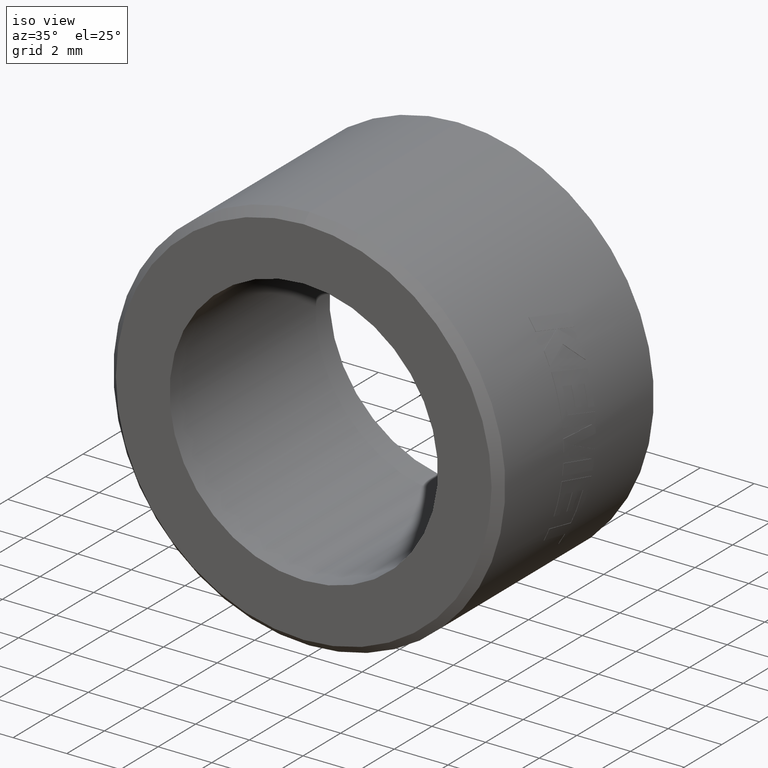
[diagram: clean part render]
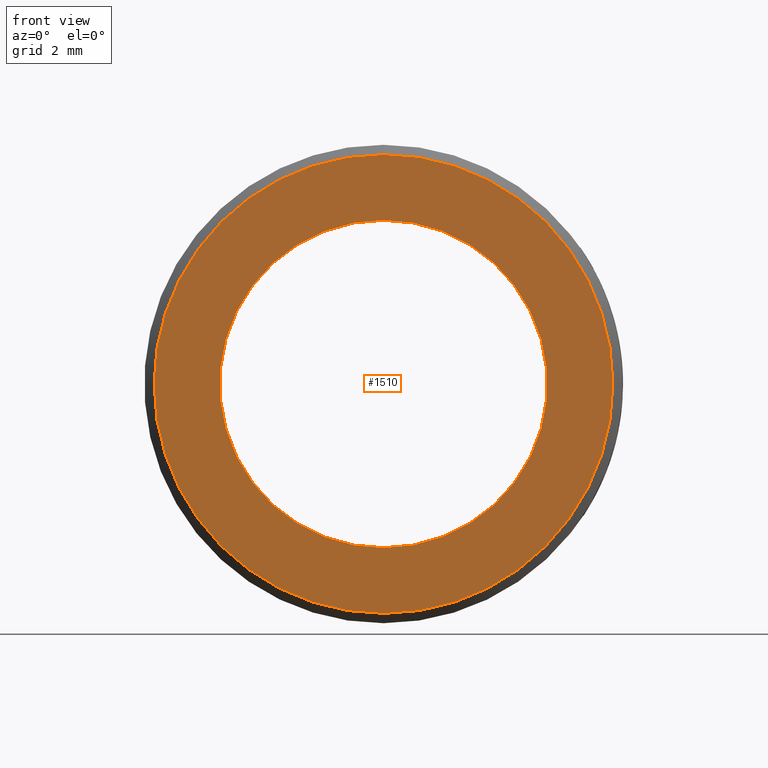
[diagram: tour spotlight — one face highlighted and labeled with its STEP entity id]
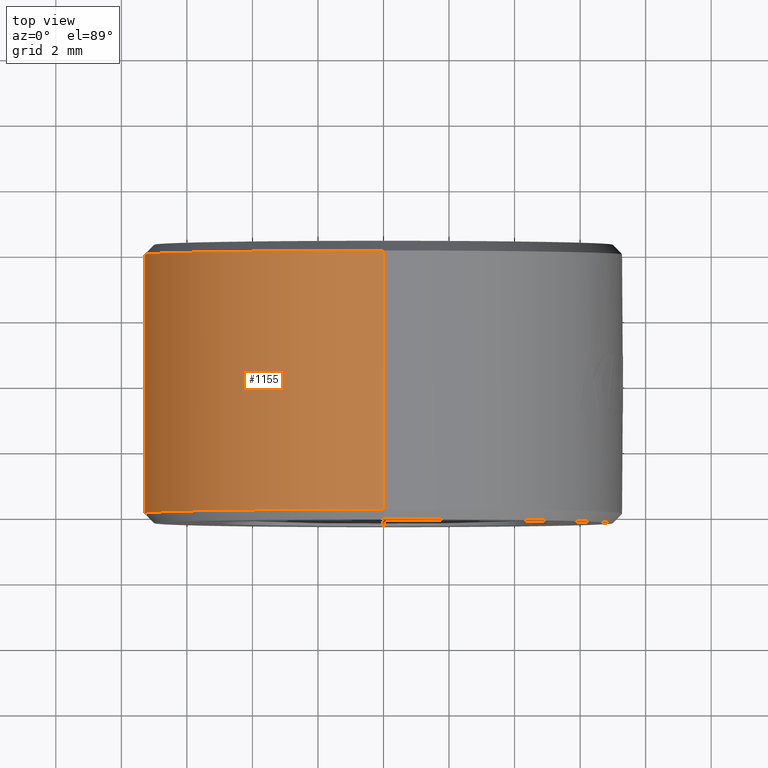
[diagram: tour spotlight — one face highlighted and labeled with its STEP entity id]
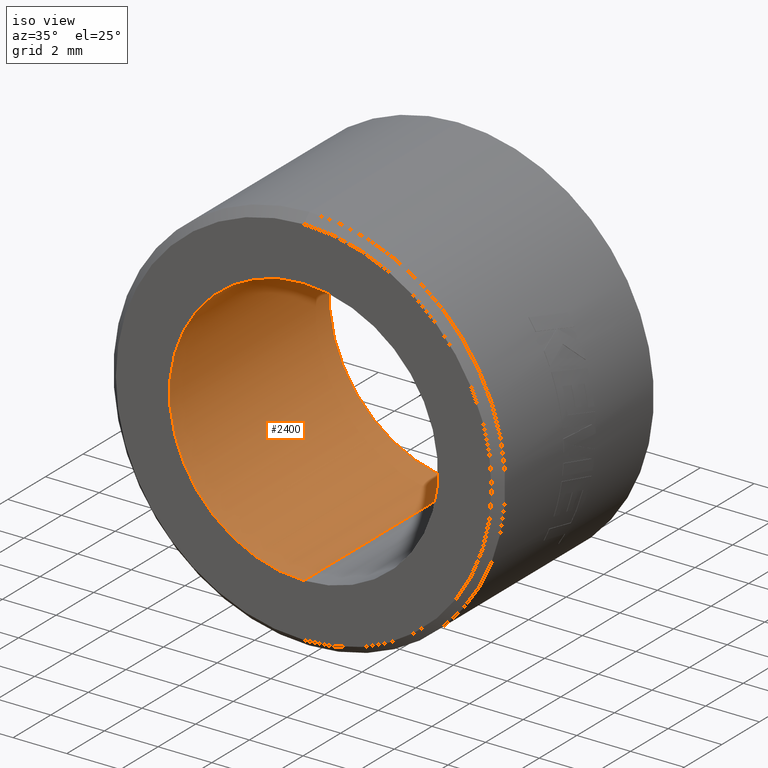
[diagram: tour spotlight — one face highlighted and labeled with its STEP entity id]
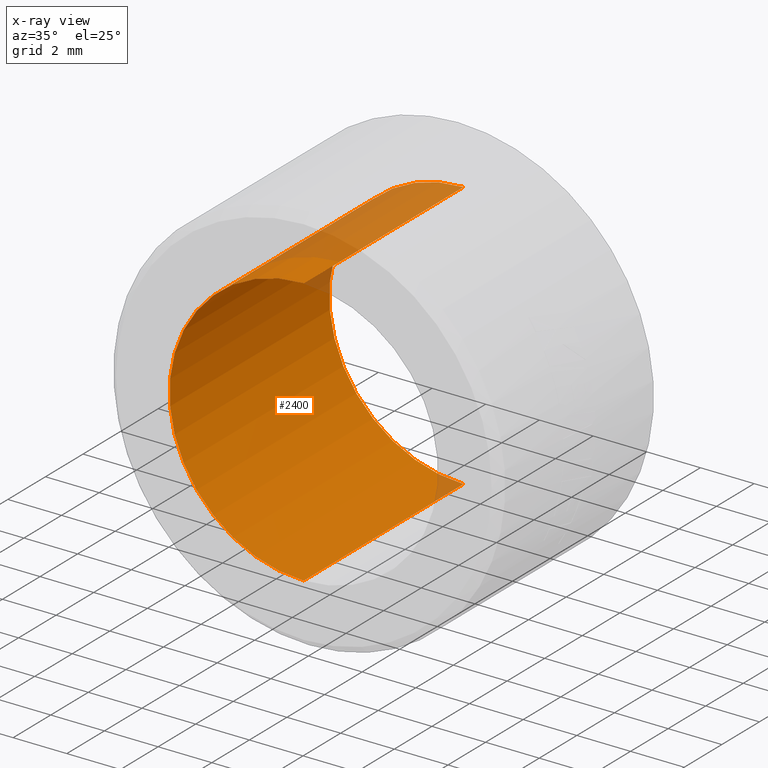
[diagram: x-ray of the same camera — body ghosted, this tour face saturated]
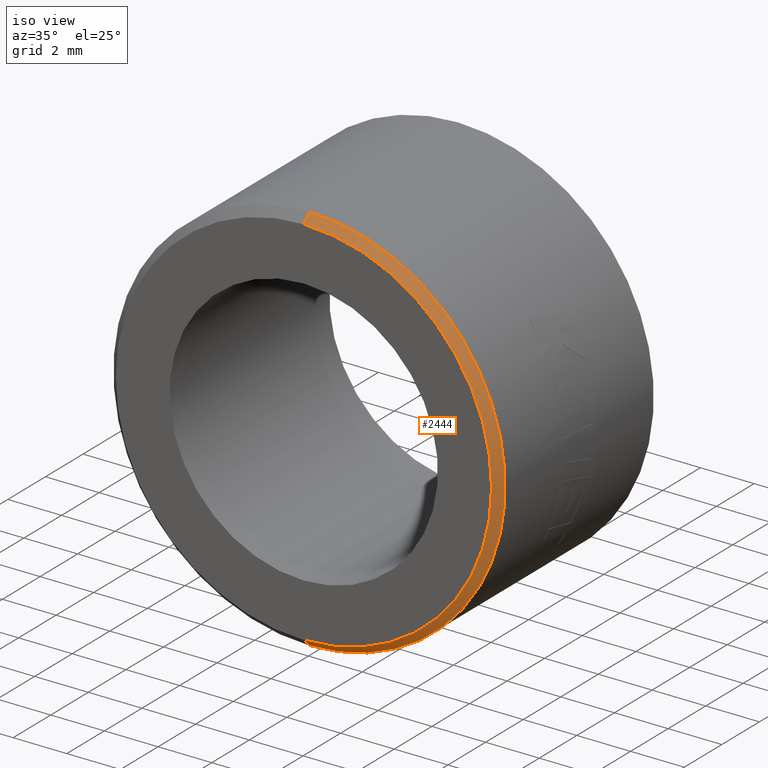
[diagram: tour spotlight — one face highlighted and labeled with its STEP entity id]
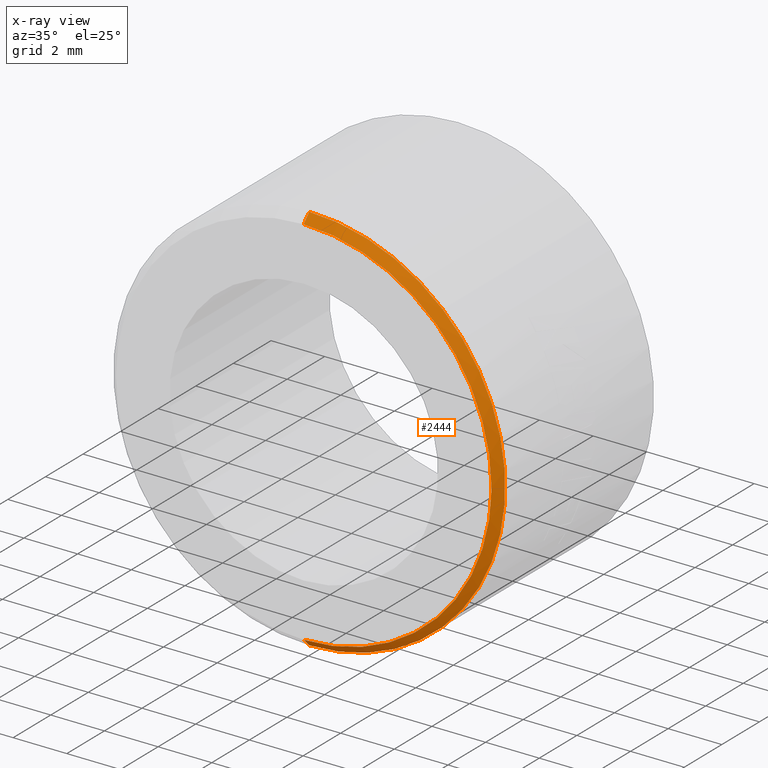
[diagram: x-ray of the same camera — body ghosted, this tour face saturated]
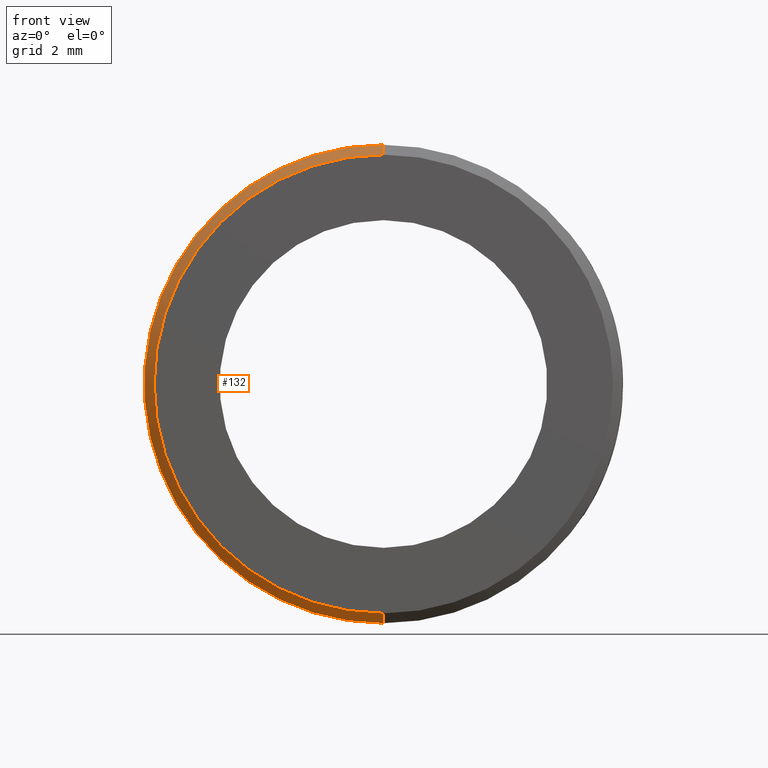
[diagram: tour spotlight — one face highlighted and labeled with its STEP entity id]
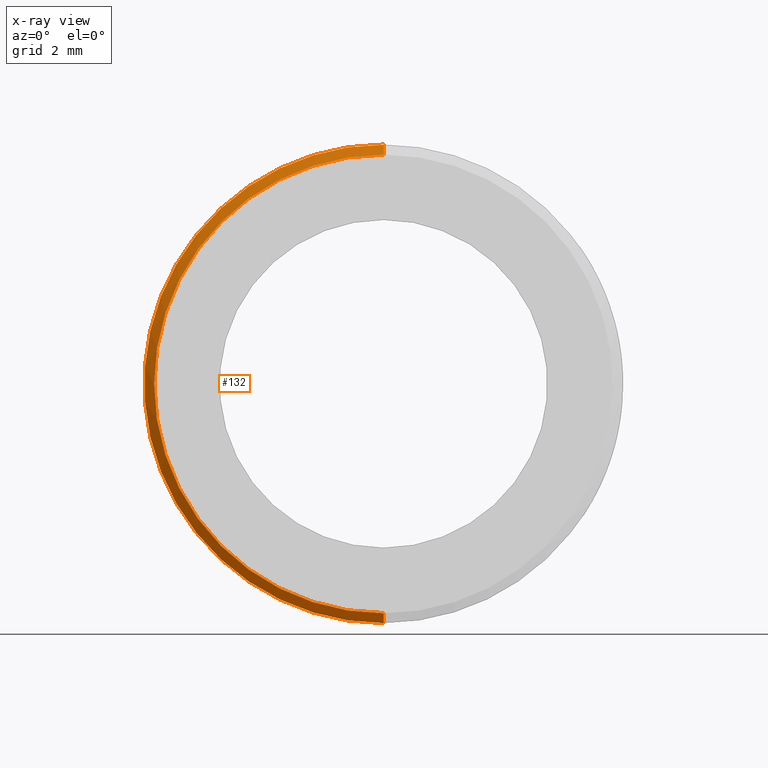
[diagram: x-ray of the same camera — body ghosted, this tour face saturated]
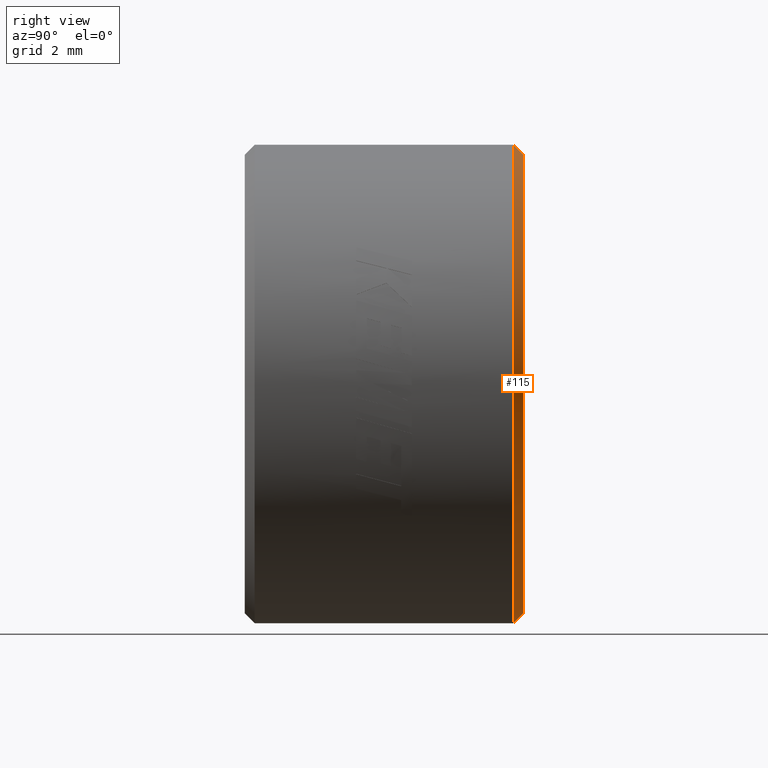
[diagram: tour spotlight — one face highlighted and labeled with its STEP entity id]
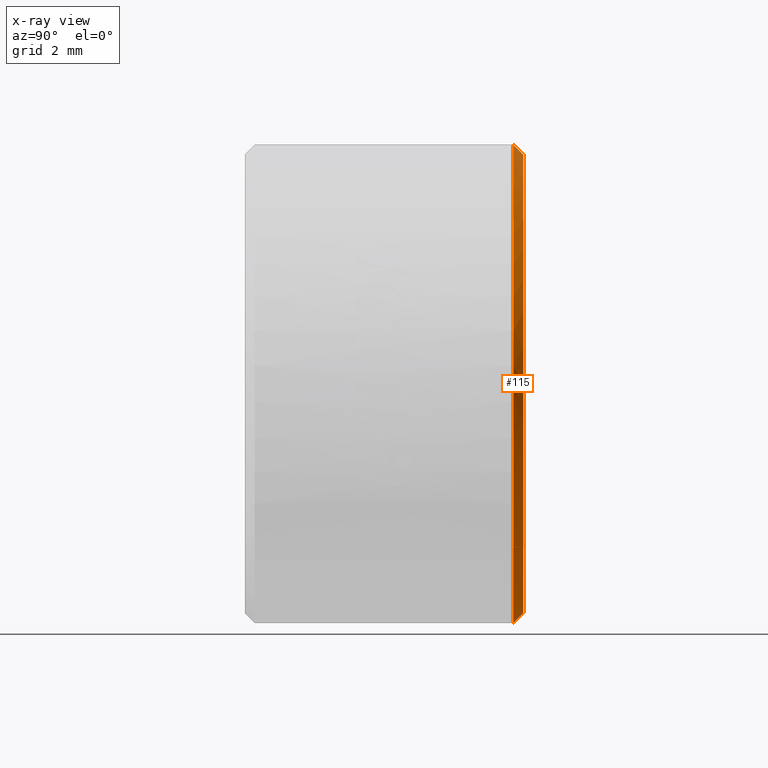
[diagram: x-ray of the same camera — body ghosted, this tour face saturated]
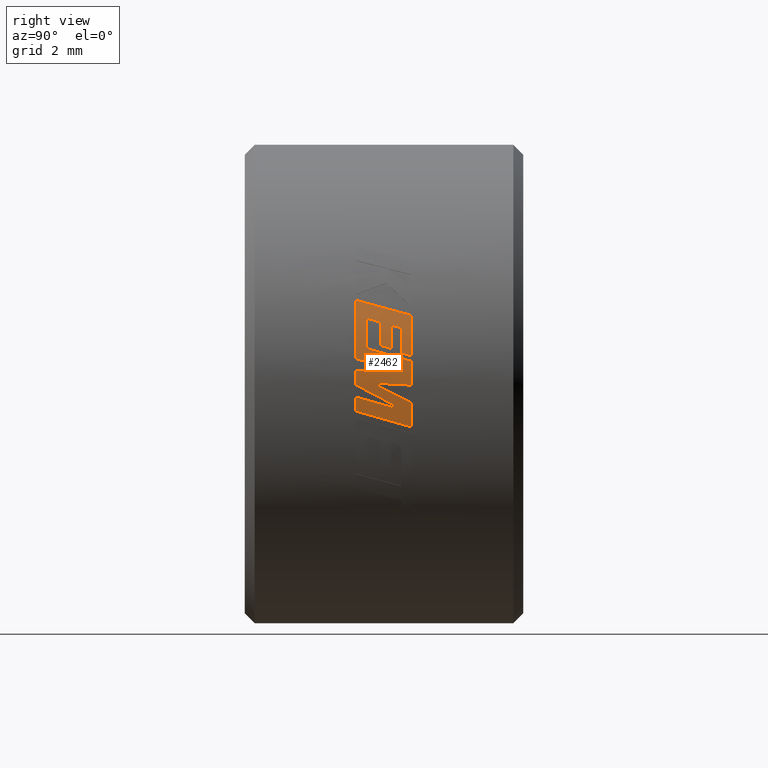
[diagram: tour spotlight — one face highlighted and labeled with its STEP entity id]
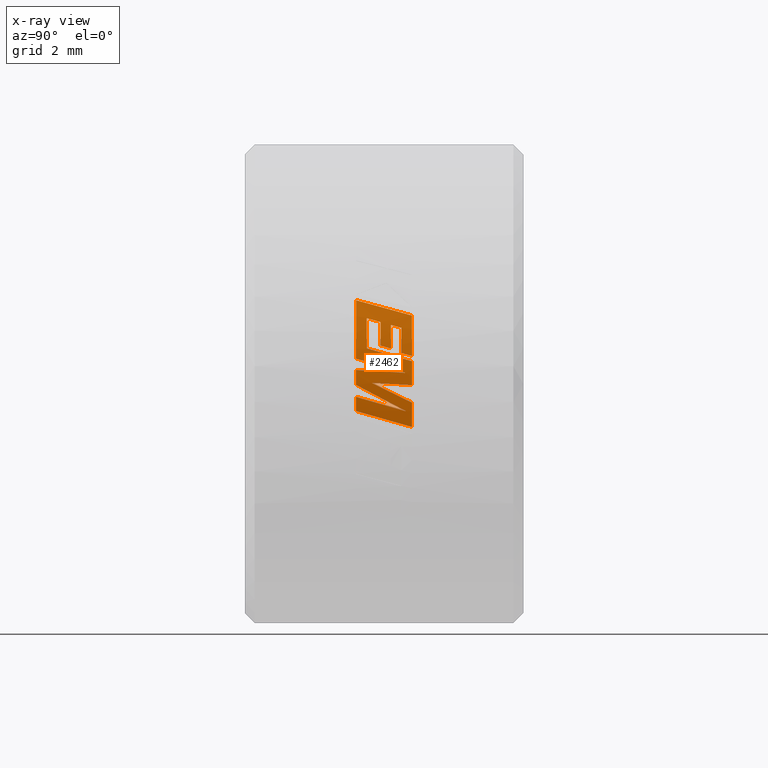
[diagram: x-ray of the same camera — body ghosted, this tour face saturated]
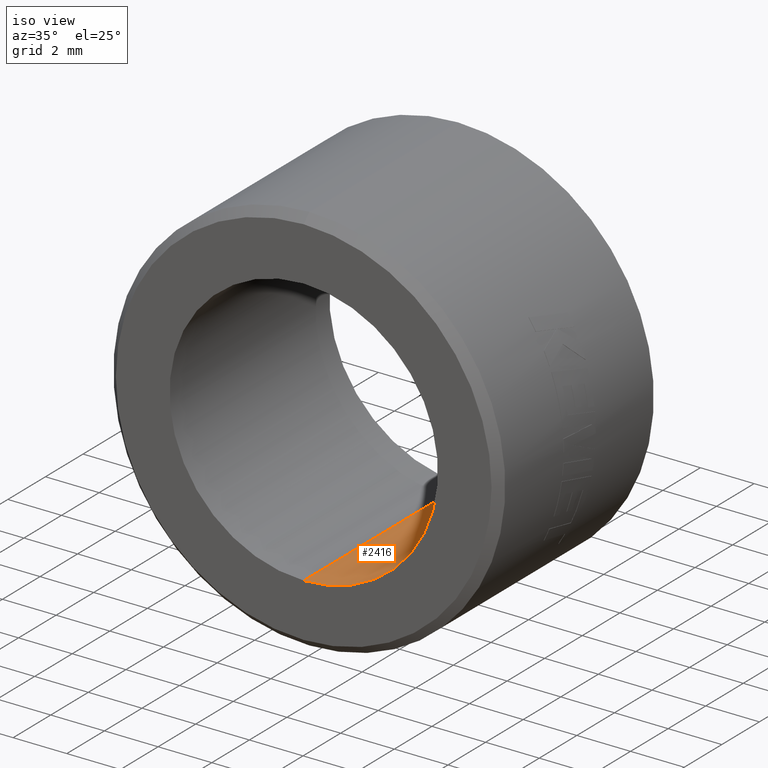
[diagram: tour spotlight — one face highlighted and labeled with its STEP entity id]
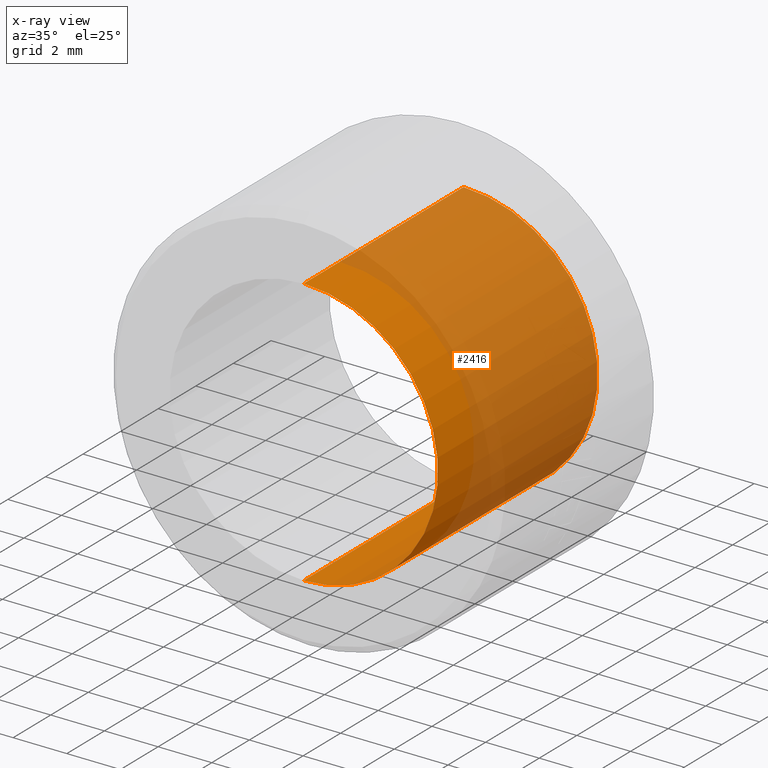
[diagram: x-ray of the same camera — body ghosted, this tour face saturated]
A machine part: a face-by-face anatomy tour. The part has 66 B-rep faces; the first image is the clean iso view, then the 8 largest visible faces are spotlighted one at a time (largest first), each with its STEP entity span.

Face 1 — front view, entity #1510. In plain terms, the highlighted planar face has unit normal (0, 1, 0).
Definition (entity closure, byte-faithful):
#57 = PLANE ( 'NONE',  #1699 ) ;
#123 = CARTESIAN_POINT ( 'NONE',  ( 0.000000000000000000, -4.250000000000000000, 0.000000000000000000 ) ) ;
#127 = DIRECTION ( 'NONE',  ( 0.000000000000000000, -0.000000000000000000, 1.000000000000000000 ) ) ;
#209 = CARTESIAN_POINT ( 'NONE',  ( 0.000000000000000000, -4.250000000000000000, 6.999239999999998574 ) ) ;
#222 = AXIS2_PLACEMENT_3D ( 'NONE', #1693, #730, #1475 ) ;
#225 = CARTESIAN_POINT ( 'NONE',  ( 0.000000000000000000, -4.250000000000000000, 0.000000000000000000 ) ) ;
#289 = ORIENTED_EDGE ( 'NONE', *, *, #1227, .T. ) ;
#344 = CARTESIAN_POINT ( 'NONE',  ( 8.755759248119895622E-16, -4.250000000000000000, -6.999239999999998574 ) ) ;
#381 = DIRECTION ( 'NONE',  ( 0.000000000000000000, 0.000000000000000000, 1.000000000000000000 ) ) ;
#405 = CARTESIAN_POINT ( 'NONE',  ( 0.000000000000000000, -4.250000000000000000, 0.000000000000000000 ) ) ;
#444 = CARTESIAN_POINT ( 'NONE',  ( 0.000000000000000000, -4.250000000000000000, 5.000000000000000000 ) ) ;
#654 = EDGE_CURVE ( 'NONE', #2254, #1719, #1529, .T. ) ;
#666 = AXIS2_PLACEMENT_3D ( 'NONE', #123, #1644, #1043 ) ;
#713 = CARTESIAN_POINT ( 'NONE',  ( 0.000000000000000000, -4.250000000000000000, 0.000000000000000000 ) ) ;
#730 = DIRECTION ( 'NONE',  ( -0.000000000000000000, -1.000000000000000000, -0.000000000000000000 ) ) ;
#880 = EDGE_CURVE ( 'NONE', #1719, #2254, #1731, .T. ) ;
#906 = DIRECTION ( 'NONE',  ( 0.000000000000000000, 1.000000000000000000, 0.000000000000000000 ) ) ;
#927 = DIRECTION ( 'NONE',  ( 0.000000000000000000, 1.000000000000000000, 0.000000000000000000 ) ) ;
#982 = ORIENTED_EDGE ( 'NONE', *, *, #654, .T. ) ;
#983 = DIRECTION ( 'NONE',  ( 0.000000000000000000, 0.000000000000000000, 1.000000000000000000 ) ) ;
#993 = DIRECTION ( 'NONE',  ( -0.000000000000000000, -1.000000000000000000, -0.000000000000000000 ) ) ;
#1043 = DIRECTION ( 'NONE',  ( 0.000000000000000000, 0.000000000000000000, 1.000000000000000000 ) ) ;
#1130 = ORIENTED_EDGE ( 'NONE', *, *, #880, .T. ) ;
#1199 = ORIENTED_EDGE ( 'NONE', *, *, #1856, .T. ) ;
#1227 = EDGE_CURVE ( 'NONE', #2460, #1579, #2025, .T. ) ;
#1300 = AXIS2_PLACEMENT_3D ( 'NONE', #225, #993, #983 ) ;
#1364 = FACE_OUTER_BOUND ( 'NONE', #1718, .T. ) ;
#1475 = DIRECTION ( 'NONE',  ( 0.000000000000000000, 0.000000000000000000, 1.000000000000000000 ) ) ;
#1510 = ADVANCED_FACE ( 'NONE', ( #1364, #1592 ), #57, .F. ) ;
#1529 = CIRCLE ( 'NONE', #1900, 5.000000000000000000 ) ;
#1579 = VERTEX_POINT ( 'NONE', #344 ) ;
#1592 = FACE_BOUND ( 'NONE', #2361, .T. ) ;
#1644 = DIRECTION ( 'NONE',  ( 0.000000000000000000, 1.000000000000000000, 0.000000000000000000 ) ) ;
#1693 = CARTESIAN_POINT ( 'NONE',  ( 0.000000000000000000, -4.250000000000000000, 0.000000000000000000 ) ) ;
#1699 = AXIS2_PLACEMENT_3D ( 'NONE', #713, #906, #127 ) ;
#1700 = CARTESIAN_POINT ( 'NONE',  ( 6.123233995736766282E-16, -4.250000000000000000, -5.000000000000000000 ) ) ;
#1718 = EDGE_LOOP ( 'NONE', ( #289, #1199 ) ) ;
#1719 = VERTEX_POINT ( 'NONE', #1700 ) ;
#1731 = CIRCLE ( 'NONE', #666, 5.000000000000000000 ) ;
#1817 = CIRCLE ( 'NONE', #1300, 6.999239999999998574 ) ;
#1856 = EDGE_CURVE ( 'NONE', #1579, #2460, #1817, .T. ) ;
#1900 = AXIS2_PLACEMENT_3D ( 'NONE', #405, #927, #381 ) ;
#2025 = CIRCLE ( 'NONE', #222, 6.999239999999998574 ) ;
#2254 = VERTEX_POINT ( 'NONE', #444 ) ;
#2361 = EDGE_LOOP ( 'NONE', ( #982, #1130 ) ) ;
#2460 = VERTEX_POINT ( 'NONE', #209 ) ;

Face 2 — top view, entity #1155. In plain terms, the highlighted cylindrical surface (partial cylindrical patch) has radius 7.3 mm, axis along (0, 1, 0).
Definition (entity closure, byte-faithful):
#63 = DIRECTION ( 'NONE',  ( 0.000000000000000000, 1.000000000000000000, 0.000000000000000000 ) ) ;
#78 = CARTESIAN_POINT ( 'NONE',  ( 0.000000000000000000, -4.250000000000000000, 7.299999999999999822 ) ) ;
#125 = ORIENTED_EDGE ( 'NONE', *, *, #382, .T. ) ;
#251 = ORIENTED_EDGE ( 'NONE', *, *, #2277, .T. ) ;
#259 = CIRCLE ( 'NONE', #422, 7.299999999999999822 ) ;
#328 = CARTESIAN_POINT ( 'NONE',  ( 8.939921633775678831E-16, 3.949240000000003192, -7.299999999999999822 ) ) ;
#382 = EDGE_CURVE ( 'NONE', #1603, #2052, #259, .T. ) ;
#422 = AXIS2_PLACEMENT_3D ( 'NONE', #2315, #2133, #1806 ) ;
#545 = DIRECTION ( 'NONE',  ( 0.000000000000000000, 0.000000000000000000, 1.000000000000000000 ) ) ;
#775 = ORIENTED_EDGE ( 'NONE', *, *, #1040, .F. ) ;
#910 = CYLINDRICAL_SURFACE ( 'NONE', #1296, 7.299999999999999822 ) ;
#921 = DIRECTION ( 'NONE',  ( 0.000000000000000000, 0.000000000000000000, 1.000000000000000000 ) ) ;
#929 = CARTESIAN_POINT ( 'NONE',  ( 0.000000000000000000, 3.949240000000003192, 7.299999999999999822 ) ) ;
#946 = VECTOR ( 'NONE', #63, 1000.000000000000000 ) ;
#976 = AXIS2_PLACEMENT_3D ( 'NONE', #2070, #1506, #921 ) ;
#1040 = EDGE_CURVE ( 'NONE', #2293, #2052, #2386, .T. ) ;
#1054 = CARTESIAN_POINT ( 'NONE',  ( 0.000000000000000000, -3.949239999999998751, 7.299999999999999822 ) ) ;
#1155 = ADVANCED_FACE ( 'NONE', ( #1188 ), #910, .T. ) ;
#1188 = FACE_OUTER_BOUND ( 'NONE', #1813, .T. ) ;
#1217 = VECTOR ( 'NONE', #2360, 1000.000000000000000 ) ;
#1266 = CARTESIAN_POINT ( 'NONE',  ( 0.000000000000000000, -4.250000000000000000, 0.000000000000000000 ) ) ;
#1296 = AXIS2_PLACEMENT_3D ( 'NONE', #1266, #2072, #545 ) ;
#1506 = DIRECTION ( 'NONE',  ( -0.000000000000000000, 1.000000000000000000, -0.000000000000000000 ) ) ;
#1603 = VERTEX_POINT ( 'NONE', #929 ) ;
#1728 = EDGE_CURVE ( 'NONE', #2293, #2384, #2099, .T. ) ;
#1775 = LINE ( 'NONE', #78, #1217 ) ;
#1800 = CARTESIAN_POINT ( 'NONE',  ( 8.939921633775678831E-16, -3.949239999999998751, -7.299999999999999822 ) ) ;
#1806 = DIRECTION ( 'NONE',  ( 0.000000000000000000, 0.000000000000000000, 1.000000000000000000 ) ) ;
#1813 = EDGE_LOOP ( 'NONE', ( #775, #2323, #251, #125 ) ) ;
#1980 = CARTESIAN_POINT ( 'NONE',  ( 8.939921633775678831E-16, -4.250000000000000000, -7.299999999999999822 ) ) ;
#2052 = VERTEX_POINT ( 'NONE', #328 ) ;
#2070 = CARTESIAN_POINT ( 'NONE',  ( 0.000000000000000000, -3.949239999999998751, 0.000000000000000000 ) ) ;
#2072 = DIRECTION ( 'NONE',  ( 0.000000000000000000, 1.000000000000000000, 0.000000000000000000 ) ) ;
#2099 = CIRCLE ( 'NONE', #976, 7.299999999999999822 ) ;
#2133 = DIRECTION ( 'NONE',  ( 0.000000000000000000, -1.000000000000000000, 0.000000000000000000 ) ) ;
#2277 = EDGE_CURVE ( 'NONE', #2384, #1603, #1775, .T. ) ;
#2293 = VERTEX_POINT ( 'NONE', #1800 ) ;
#2315 = CARTESIAN_POINT ( 'NONE',  ( 0.000000000000000000, 3.949240000000003192, 0.000000000000000000 ) ) ;
#2323 = ORIENTED_EDGE ( 'NONE', *, *, #1728, .T. ) ;
#2360 = DIRECTION ( 'NONE',  ( 0.000000000000000000, 1.000000000000000000, 0.000000000000000000 ) ) ;
#2384 = VERTEX_POINT ( 'NONE', #1054 ) ;
#2386 = LINE ( 'NONE', #1980, #946 ) ;

Face 3 — iso view, entity #2400. An x-ray twin of the same camera follows (body ghosted, this face saturated) — the face is partly hidden behind the body. In plain terms, the highlighted cylindrical surface (partial cylindrical patch) has radius 5 mm, axis along (0, 1, 0).
Definition (entity closure, byte-faithful):
#119 = DIRECTION ( 'NONE',  ( 0.000000000000000000, 1.000000000000000000, 0.000000000000000000 ) ) ;
#123 = CARTESIAN_POINT ( 'NONE',  ( 0.000000000000000000, -4.250000000000000000, 0.000000000000000000 ) ) ;
#324 = FACE_OUTER_BOUND ( 'NONE', #1578, .T. ) ;
#433 = DIRECTION ( 'NONE',  ( 0.000000000000000000, 1.000000000000000000, 0.000000000000000000 ) ) ;
#444 = CARTESIAN_POINT ( 'NONE',  ( 0.000000000000000000, -4.250000000000000000, 5.000000000000000000 ) ) ;
#535 = CARTESIAN_POINT ( 'NONE',  ( 0.000000000000000000, -4.250000000000000000, 5.000000000000000000 ) ) ;
#573 = CARTESIAN_POINT ( 'NONE',  ( 0.000000000000000000, 4.250000000000000000, 5.000000000000000000 ) ) ;
#610 = CARTESIAN_POINT ( 'NONE',  ( 0.000000000000000000, 4.250000000000000000, 0.000000000000000000 ) ) ;
#652 = VERTEX_POINT ( 'NONE', #573 ) ;
#666 = AXIS2_PLACEMENT_3D ( 'NONE', #123, #1644, #1043 ) ;
#778 = ORIENTED_EDGE ( 'NONE', *, *, #2352, .F. ) ;
#874 = LINE ( 'NONE', #535, #1302 ) ;
#880 = EDGE_CURVE ( 'NONE', #1719, #2254, #1731, .T. ) ;
#911 = CIRCLE ( 'NONE', #1179, 5.000000000000000000 ) ;
#990 = ORIENTED_EDGE ( 'NONE', *, *, #1804, .T. ) ;
#1015 = VECTOR ( 'NONE', #433, 1000.000000000000000 ) ;
#1026 = LINE ( 'NONE', #2095, #1015 ) ;
#1043 = DIRECTION ( 'NONE',  ( 0.000000000000000000, 0.000000000000000000, 1.000000000000000000 ) ) ;
#1094 = VERTEX_POINT ( 'NONE', #1226 ) ;
#1179 = AXIS2_PLACEMENT_3D ( 'NONE', #610, #1561, #1945 ) ;
#1226 = CARTESIAN_POINT ( 'NONE',  ( 6.123233995736766282E-16, 4.250000000000000000, -5.000000000000000000 ) ) ;
#1302 = VECTOR ( 'NONE', #119, 1000.000000000000000 ) ;
#1323 = DIRECTION ( 'NONE',  ( 0.000000000000000000, 1.000000000000000000, 0.000000000000000000 ) ) ;
#1352 = ORIENTED_EDGE ( 'NONE', *, *, #880, .F. ) ;
#1416 = AXIS2_PLACEMENT_3D ( 'NONE', #1812, #1323, #1511 ) ;
#1463 = CYLINDRICAL_SURFACE ( 'NONE', #1416, 5.000000000000000000 ) ;
#1511 = DIRECTION ( 'NONE',  ( 0.000000000000000000, 0.000000000000000000, 1.000000000000000000 ) ) ;
#1561 = DIRECTION ( 'NONE',  ( 0.000000000000000000, 1.000000000000000000, 0.000000000000000000 ) ) ;
#1578 = EDGE_LOOP ( 'NONE', ( #1352, #2421, #990, #778 ) ) ;
#1644 = DIRECTION ( 'NONE',  ( 0.000000000000000000, 1.000000000000000000, 0.000000000000000000 ) ) ;
#1700 = CARTESIAN_POINT ( 'NONE',  ( 6.123233995736766282E-16, -4.250000000000000000, -5.000000000000000000 ) ) ;
#1719 = VERTEX_POINT ( 'NONE', #1700 ) ;
#1731 = CIRCLE ( 'NONE', #666, 5.000000000000000000 ) ;
#1804 = EDGE_CURVE ( 'NONE', #1094, #652, #911, .T. ) ;
#1812 = CARTESIAN_POINT ( 'NONE',  ( 0.000000000000000000, -4.250000000000000000, 0.000000000000000000 ) ) ;
#1945 = DIRECTION ( 'NONE',  ( 0.000000000000000000, 0.000000000000000000, 1.000000000000000000 ) ) ;
#2095 = CARTESIAN_POINT ( 'NONE',  ( 6.123233995736766282E-16, -4.250000000000000000, -5.000000000000000000 ) ) ;
#2253 = EDGE_CURVE ( 'NONE', #1719, #1094, #1026, .T. ) ;
#2254 = VERTEX_POINT ( 'NONE', #444 ) ;
#2352 = EDGE_CURVE ( 'NONE', #2254, #652, #874, .T. ) ;
#2400 = ADVANCED_FACE ( 'NONE', ( #324 ), #1463, .F. ) ;
#2421 = ORIENTED_EDGE ( 'NONE', *, *, #2253, .T. ) ;

Face 4 — iso view, entity #2444. An x-ray twin of the same camera follows (body ghosted, this face saturated) — the face is partly hidden behind the body. In plain terms, the highlighted conical surface has half-angle 45 deg.
Definition (entity closure, byte-faithful):
#58 = VECTOR ( 'NONE', #280, 1000.000000000000000 ) ;
#73 = ORIENTED_EDGE ( 'NONE', *, *, #284, .T. ) ;
#209 = CARTESIAN_POINT ( 'NONE',  ( 0.000000000000000000, -4.250000000000000000, 6.999239999999998574 ) ) ;
#216 = DIRECTION ( 'NONE',  ( -0.000000000000000000, 1.000000000000000000, -0.000000000000000000 ) ) ;
#225 = CARTESIAN_POINT ( 'NONE',  ( 0.000000000000000000, -4.250000000000000000, 0.000000000000000000 ) ) ;
#280 = DIRECTION ( 'NONE',  ( 0.000000000000000000, 0.7071067811865474617, 0.7071067811865475727 ) ) ;
#284 = EDGE_CURVE ( 'NONE', #1579, #2293, #1701, .T. ) ;
#306 = VECTOR ( 'NONE', #932, 1000.000000000000000 ) ;
#344 = CARTESIAN_POINT ( 'NONE',  ( 8.755759248119895622E-16, -4.250000000000000000, -6.999239999999998574 ) ) ;
#351 = CIRCLE ( 'NONE', #2135, 7.299999999999999822 ) ;
#402 = DIRECTION ( 'NONE',  ( 0.000000000000000000, 0.000000000000000000, 1.000000000000000000 ) ) ;
#773 = CARTESIAN_POINT ( 'NONE',  ( 8.939921633775676859E-16, -3.949239999999998751, -7.299999999999999822 ) ) ;
#785 = CARTESIAN_POINT ( 'NONE',  ( 0.000000000000000000, -3.949239999999998751, 0.000000000000000000 ) ) ;
#825 = CARTESIAN_POINT ( 'NONE',  ( 0.000000000000000000, -3.949239999999998751, 7.299999999999999822 ) ) ;
#883 = ORIENTED_EDGE ( 'NONE', *, *, #1400, .F. ) ;
#914 = EDGE_CURVE ( 'NONE', #2384, #2293, #351, .T. ) ;
#932 = DIRECTION ( 'NONE',  ( 8.659560562354932858E-17, 0.7071067811865474617, -0.7071067811865475727 ) ) ;
#958 = FACE_OUTER_BOUND ( 'NONE', #2104, .T. ) ;
#983 = DIRECTION ( 'NONE',  ( 0.000000000000000000, 0.000000000000000000, 1.000000000000000000 ) ) ;
#993 = DIRECTION ( 'NONE',  ( -0.000000000000000000, -1.000000000000000000, -0.000000000000000000 ) ) ;
#1054 = CARTESIAN_POINT ( 'NONE',  ( 0.000000000000000000, -3.949239999999998751, 7.299999999999999822 ) ) ;
#1158 = CARTESIAN_POINT ( 'NONE',  ( 0.000000000000000000, -3.949239999999998751, 0.000000000000000000 ) ) ;
#1300 = AXIS2_PLACEMENT_3D ( 'NONE', #225, #993, #983 ) ;
#1400 = EDGE_CURVE ( 'NONE', #2460, #2384, #2160, .T. ) ;
#1465 = ORIENTED_EDGE ( 'NONE', *, *, #914, .F. ) ;
#1579 = VERTEX_POINT ( 'NONE', #344 ) ;
#1684 = DIRECTION ( 'NONE',  ( -0.000000000000000000, 1.000000000000000000, -0.000000000000000000 ) ) ;
#1701 = LINE ( 'NONE', #773, #306 ) ;
#1800 = CARTESIAN_POINT ( 'NONE',  ( 8.939921633775678831E-16, -3.949239999999998751, -7.299999999999999822 ) ) ;
#1817 = CIRCLE ( 'NONE', #1300, 6.999239999999998574 ) ;
#1856 = EDGE_CURVE ( 'NONE', #1579, #2460, #1817, .T. ) ;
#1908 = AXIS2_PLACEMENT_3D ( 'NONE', #785, #216, #402 ) ;
#2018 = ORIENTED_EDGE ( 'NONE', *, *, #1856, .F. ) ;
#2104 = EDGE_LOOP ( 'NONE', ( #2018, #73, #1465, #883 ) ) ;
#2106 = DIRECTION ( 'NONE',  ( 0.000000000000000000, 0.000000000000000000, 1.000000000000000000 ) ) ;
#2135 = AXIS2_PLACEMENT_3D ( 'NONE', #1158, #1684, #2106 ) ;
#2160 = LINE ( 'NONE', #825, #58 ) ;
#2260 = CONICAL_SURFACE ( 'NONE', #1908, 7.299999999999999822, 0.7853981633974482790 ) ;
#2293 = VERTEX_POINT ( 'NONE', #1800 ) ;
#2384 = VERTEX_POINT ( 'NONE', #1054 ) ;
#2444 = ADVANCED_FACE ( 'NONE', ( #958 ), #2260, .T. ) ;
#2460 = VERTEX_POINT ( 'NONE', #209 ) ;

Face 5 — front view, entity #132. An x-ray twin of the same camera follows (body ghosted, this face saturated) — the face is partly hidden behind the body. In plain terms, the highlighted conical surface has half-angle 45 deg.
Definition (entity closure, byte-faithful):
#58 = VECTOR ( 'NONE', #280, 1000.000000000000000 ) ;
#129 = CARTESIAN_POINT ( 'NONE',  ( 0.000000000000000000, -3.949239999999998751, 0.000000000000000000 ) ) ;
#132 = ADVANCED_FACE ( 'NONE', ( #1851 ), #1294, .T. ) ;
#209 = CARTESIAN_POINT ( 'NONE',  ( 0.000000000000000000, -4.250000000000000000, 6.999239999999998574 ) ) ;
#222 = AXIS2_PLACEMENT_3D ( 'NONE', #1693, #730, #1475 ) ;
#280 = DIRECTION ( 'NONE',  ( 0.000000000000000000, 0.7071067811865474617, 0.7071067811865475727 ) ) ;
#284 = EDGE_CURVE ( 'NONE', #1579, #2293, #1701, .T. ) ;
#306 = VECTOR ( 'NONE', #932, 1000.000000000000000 ) ;
#344 = CARTESIAN_POINT ( 'NONE',  ( 8.755759248119895622E-16, -4.250000000000000000, -6.999239999999998574 ) ) ;
#730 = DIRECTION ( 'NONE',  ( -0.000000000000000000, -1.000000000000000000, -0.000000000000000000 ) ) ;
#773 = CARTESIAN_POINT ( 'NONE',  ( 8.939921633775676859E-16, -3.949239999999998751, -7.299999999999999822 ) ) ;
#825 = CARTESIAN_POINT ( 'NONE',  ( 0.000000000000000000, -3.949239999999998751, 7.299999999999999822 ) ) ;
#921 = DIRECTION ( 'NONE',  ( 0.000000000000000000, 0.000000000000000000, 1.000000000000000000 ) ) ;
#932 = DIRECTION ( 'NONE',  ( 8.659560562354932858E-17, 0.7071067811865474617, -0.7071067811865475727 ) ) ;
#944 = AXIS2_PLACEMENT_3D ( 'NONE', #129, #1485, #1474 ) ;
#976 = AXIS2_PLACEMENT_3D ( 'NONE', #2070, #1506, #921 ) ;
#1054 = CARTESIAN_POINT ( 'NONE',  ( 0.000000000000000000, -3.949239999999998751, 7.299999999999999822 ) ) ;
#1082 = ORIENTED_EDGE ( 'NONE', *, *, #1227, .F. ) ;
#1227 = EDGE_CURVE ( 'NONE', #2460, #1579, #2025, .T. ) ;
#1294 = CONICAL_SURFACE ( 'NONE', #944, 7.299999999999999822, 0.7853981633974482790 ) ;
#1400 = EDGE_CURVE ( 'NONE', #2460, #2384, #2160, .T. ) ;
#1474 = DIRECTION ( 'NONE',  ( 0.000000000000000000, 0.000000000000000000, 1.000000000000000000 ) ) ;
#1475 = DIRECTION ( 'NONE',  ( 0.000000000000000000, 0.000000000000000000, 1.000000000000000000 ) ) ;
#1485 = DIRECTION ( 'NONE',  ( -0.000000000000000000, 1.000000000000000000, -0.000000000000000000 ) ) ;
#1506 = DIRECTION ( 'NONE',  ( -0.000000000000000000, 1.000000000000000000, -0.000000000000000000 ) ) ;
#1579 = VERTEX_POINT ( 'NONE', #344 ) ;
#1693 = CARTESIAN_POINT ( 'NONE',  ( 0.000000000000000000, -4.250000000000000000, 0.000000000000000000 ) ) ;
#1701 = LINE ( 'NONE', #773, #306 ) ;
#1728 = EDGE_CURVE ( 'NONE', #2293, #2384, #2099, .T. ) ;
#1789 = ORIENTED_EDGE ( 'NONE', *, *, #1728, .F. ) ;
#1800 = CARTESIAN_POINT ( 'NONE',  ( 8.939921633775678831E-16, -3.949239999999998751, -7.299999999999999822 ) ) ;
#1832 = ORIENTED_EDGE ( 'NONE', *, *, #284, .F. ) ;
#1851 = FACE_OUTER_BOUND ( 'NONE', #1895, .T. ) ;
#1895 = EDGE_LOOP ( 'NONE', ( #1832, #1082, #2377, #1789 ) ) ;
#2025 = CIRCLE ( 'NONE', #222, 6.999239999999998574 ) ;
#2070 = CARTESIAN_POINT ( 'NONE',  ( 0.000000000000000000, -3.949239999999998751, 0.000000000000000000 ) ) ;
#2099 = CIRCLE ( 'NONE', #976, 7.299999999999999822 ) ;
#2160 = LINE ( 'NONE', #825, #58 ) ;
#2293 = VERTEX_POINT ( 'NONE', #1800 ) ;
#2377 = ORIENTED_EDGE ( 'NONE', *, *, #1400, .T. ) ;
#2384 = VERTEX_POINT ( 'NONE', #1054 ) ;
#2460 = VERTEX_POINT ( 'NONE', #209 ) ;

Face 6 — right view, entity #115. An x-ray twin of the same camera follows (body ghosted, this face saturated) — the face is partly hidden behind the body. In plain terms, the highlighted conical surface has half-angle 45 deg.
Definition (entity closure, byte-faithful):
#33 = EDGE_CURVE ( 'NONE', #1170, #2052, #1580, .T. ) ;
#115 = ADVANCED_FACE ( 'NONE', ( #1406 ), #1032, .T. ) ;
#197 = CARTESIAN_POINT ( 'NONE',  ( 8.755759248119899566E-16, 4.250000000000000000, 6.999240000000000350 ) ) ;
#215 = DIRECTION ( 'NONE',  ( 0.000000000000000000, -1.000000000000000000, 0.000000000000000000 ) ) ;
#328 = CARTESIAN_POINT ( 'NONE',  ( 8.939921633775678831E-16, 3.949240000000003192, -7.299999999999999822 ) ) ;
#343 = CARTESIAN_POINT ( 'NONE',  ( 8.571596862464121287E-16, 4.250000000000000000, 6.999240000000000350 ) ) ;
#389 = VECTOR ( 'NONE', #712, 1000.000000000000114 ) ;
#448 = EDGE_CURVE ( 'NONE', #1742, #1603, #2015, .T. ) ;
#512 = ORIENTED_EDGE ( 'NONE', *, *, #448, .T. ) ;
#529 = EDGE_LOOP ( 'NONE', ( #2202, #512, #1360, #1067 ) ) ;
#605 = VECTOR ( 'NONE', #1208, 1000.000000000000114 ) ;
#701 = DIRECTION ( 'NONE',  ( 0.000000000000000000, 0.000000000000000000, -1.000000000000000000 ) ) ;
#712 = DIRECTION ( 'NONE',  ( 8.659560562354969836E-17, -0.7071067811865443531, 0.7071067811865506814 ) ) ;
#717 = AXIS2_PLACEMENT_3D ( 'NONE', #1242, #1417, #1624 ) ;
#731 = AXIS2_PLACEMENT_3D ( 'NONE', #2179, #2397, #701 ) ;
#757 = CIRCLE ( 'NONE', #2452, 7.299999999999999822 ) ;
#929 = CARTESIAN_POINT ( 'NONE',  ( 0.000000000000000000, 3.949240000000003192, 7.299999999999999822 ) ) ;
#1032 = CONICAL_SURFACE ( 'NONE', #731, 6.999240000000000350, 0.7853981633974528309 ) ;
#1067 = ORIENTED_EDGE ( 'NONE', *, *, #33, .F. ) ;
#1170 = VERTEX_POINT ( 'NONE', #2229 ) ;
#1208 = DIRECTION ( 'NONE',  ( 0.000000000000000000, -0.7071067811865443531, -0.7071067811865506814 ) ) ;
#1242 = CARTESIAN_POINT ( 'NONE',  ( 0.000000000000000000, 4.250000000000000000, 0.000000000000000000 ) ) ;
#1315 = EDGE_CURVE ( 'NONE', #2052, #1603, #757, .T. ) ;
#1360 = ORIENTED_EDGE ( 'NONE', *, *, #1315, .F. ) ;
#1406 = FACE_OUTER_BOUND ( 'NONE', #529, .T. ) ;
#1417 = DIRECTION ( 'NONE',  ( 0.000000000000000000, 1.000000000000000000, 0.000000000000000000 ) ) ;
#1580 = LINE ( 'NONE', #2345, #605 ) ;
#1603 = VERTEX_POINT ( 'NONE', #929 ) ;
#1624 = DIRECTION ( 'NONE',  ( 0.000000000000000000, 0.000000000000000000, 1.000000000000000000 ) ) ;
#1742 = VERTEX_POINT ( 'NONE', #197 ) ;
#1976 = EDGE_CURVE ( 'NONE', #1742, #1170, #2222, .T. ) ;
#2015 = LINE ( 'NONE', #343, #389 ) ;
#2052 = VERTEX_POINT ( 'NONE', #328 ) ;
#2089 = CARTESIAN_POINT ( 'NONE',  ( 0.000000000000000000, 3.949240000000003192, 0.000000000000000000 ) ) ;
#2179 = CARTESIAN_POINT ( 'NONE',  ( 0.000000000000000000, 4.250000000000000000, 0.000000000000000000 ) ) ;
#2202 = ORIENTED_EDGE ( 'NONE', *, *, #1976, .F. ) ;
#2222 = CIRCLE ( 'NONE', #717, 6.999240000000000350 ) ;
#2229 = CARTESIAN_POINT ( 'NONE',  ( 0.000000000000000000, 4.250000000000000000, -6.999240000000000350 ) ) ;
#2283 = DIRECTION ( 'NONE',  ( 0.000000000000000000, 0.000000000000000000, 1.000000000000000000 ) ) ;
#2345 = CARTESIAN_POINT ( 'NONE',  ( 0.000000000000000000, 4.250000000000000000, -6.999240000000000350 ) ) ;
#2397 = DIRECTION ( 'NONE',  ( 0.000000000000000000, -1.000000000000000000, 0.000000000000000000 ) ) ;
#2452 = AXIS2_PLACEMENT_3D ( 'NONE', #2089, #215, #2283 ) ;

Face 7 — right view, entity #2462. An x-ray twin of the same camera follows (body ghosted, this face saturated) — the face is partly hidden behind the body. In plain terms, the highlighted cylindrical surface (partial cylindrical patch) has radius 7.31 mm, axis along (0, 1, 0).
Definition (entity closure, byte-faithful):
#6 = CARTESIAN_POINT ( 'NONE',  ( 0.000000000000000000, 0.8501155299763416551, 0.000000000000000000 ) ) ;
#11 = VERTEX_POINT ( 'NONE', #2137 ) ;
#26 = DIRECTION ( 'NONE',  ( 0.000000000000000000, 0.000000000000000000, 1.000000000000000000 ) ) ;
#38 = CARTESIAN_POINT ( 'NONE',  ( 7.297732410493678046, -0.8510120597978306778, 0.4233221761615177381 ) ) ;
#39 = DIRECTION ( 'NONE',  ( 0.000000000000000000, 1.000000000000000000, 0.000000000000000000 ) ) ;
#43 = CARTESIAN_POINT ( 'NONE',  ( 7.309936089548093818, -0.8510120597978306778, -0.03056741275130163069 ) ) ;
#54 = CIRCLE ( 'NONE', #974, 7.309999999999999609 ) ;
#107 = CARTESIAN_POINT ( 'NONE',  ( 7.262897505622848193, -0.8510120597978306778, -0.8285045701849766964 ) ) ;
#109 = AXIS2_PLACEMENT_3D ( 'NONE', #1407, #2138, #2318 ) ;
#117 = VERTEX_POINT ( 'NONE', #145 ) ;
#145 = CARTESIAN_POINT ( 'NONE',  ( 7.309916917646815726, 0.8501155299763416551, -0.03485193109244365955 ) ) ;
#148 = VERTEX_POINT ( 'NONE', #497 ) ;
#159 = CARTESIAN_POINT ( 'NONE',  ( 7.262360607365343057, 0.6707502821641249113, -0.8331977007818065495 ) ) ;
#173 = CARTESIAN_POINT ( 'NONE',  ( 7.309916917646815726, 0.8501155299763416551, -0.03485193109244365955 ) ) ;
#175 = DIRECTION ( 'NONE',  ( 0.000000000000000000, 1.000000000000000000, 0.000000000000000000 ) ) ;
#181 = EDGE_CURVE ( 'NONE', #1843, #839, #54, .T. ) ;
#193 = DIRECTION ( 'NONE',  ( 0.000000000000000000, 1.000000000000000000, 0.000000000000000000 ) ) ;
#218 = EDGE_CURVE ( 'NONE', #2019, #1086, #819, .T. ) ;
#221 = ORIENTED_EDGE ( 'NONE', *, *, #2364, .T. ) ;
#267 = ORIENTED_EDGE ( 'NONE', *, *, #1042, .T. ) ;
#269 = ORIENTED_EDGE ( 'NONE', *, *, #614, .T. ) ;
#272 = EDGE_CURVE ( 'NONE', #2019, #11, #580, .T. ) ;
#283 = CARTESIAN_POINT ( 'NONE',  ( 7.299199812078707161, -0.8510120597978306778, -0.3972179544660034423 ) ) ;
#291 = VERTEX_POINT ( 'NONE', #2457 ) ;
#292 = VERTEX_POINT ( 'NONE', #765 ) ;
#296 = CARTESIAN_POINT ( 'NONE',  ( 7.191136131902272410, 0.8501155299763408779, -1.312882756551248642 ) ) ;
#304 = B_SPLINE_CURVE_WITH_KNOTS ( 'NONE', 3,
 ( #107, #547, #1842, #296 ),
 .UNSPECIFIED., .F., .F.,
 ( 4, 4 ),
 ( 0.000000000000000000, 1.000000000000000000 ),
 .UNSPECIFIED. ) ;
#315 = CARTESIAN_POINT ( 'NONE',  ( 7.061695779720640331, -0.1045749714777425010, 1.889061331634229290 ) ) ;
#329 = ORIENTED_EDGE ( 'NONE', *, *, #1169, .T. ) ;
#350 = VERTEX_POINT ( 'NONE', #43 ) ;
#359 = CARTESIAN_POINT ( 'NONE',  ( 7.248019925288848420, 0.5263146279889932000, 0.9498985012177980636 ) ) ;
#364 = DIRECTION ( 'NONE',  ( 0.000000000000000000, 0.000000000000000000, 1.000000000000000000 ) ) ;
#370 = CARTESIAN_POINT ( 'NONE',  ( 7.215014662907248244, -0.1045749714777425010, 1.174590743209481314 ) ) ;
#391 = AXIS2_PLACEMENT_3D ( 'NONE', #2166, #457, #1760 ) ;
#392 = CARTESIAN_POINT ( 'NONE',  ( 7.091955863789982217, 0.3153749861694405965, 1.772344909576282435 ) ) ;
#409 = EDGE_CURVE ( 'NONE', #2401, #1612, #2369, .T. ) ;
#418 = CARTESIAN_POINT ( 'NONE',  ( 7.230774528154561231, -0.8510120597978306778, 1.073312500156030636 ) ) ;
#457 = DIRECTION ( 'NONE',  ( 0.000000000000000000, 1.000000000000000000, 0.000000000000000000 ) ) ;
#459 = CARTESIAN_POINT ( 'NONE',  ( 7.297732410493678046, -0.8510120597978306778, 0.4233221761615177381 ) ) ;
#465 = CIRCLE ( 'NONE', #1862, 7.309999999999999609 ) ;
#489 = CARTESIAN_POINT ( 'NONE',  ( 7.284402007195016182, -0.3461890000087218811, 0.6282160003210068844 ) ) ;
#497 = CARTESIAN_POINT ( 'NONE',  ( 7.061695779720640331, -0.1045749714777425010, 1.889061331634229290 ) ) ;
#499 = CARTESIAN_POINT ( 'NONE',  ( 0.000000000000000000, 0.8501155299763408779, 0.000000000000000000 ) ) ;
#513 = CIRCLE ( 'NONE', #1370, 7.309999999999999609 ) ;
#523 = ORIENTED_EDGE ( 'NONE', *, *, #527, .T. ) ;
#527 = EDGE_CURVE ( 'NONE', #1820, #664, #1058, .T. ) ;
#547 = CARTESIAN_POINT ( 'NONE',  ( 7.244394739088654944, -0.2839695298731068629, -0.9907048787219721042 ) ) ;
#557 = AXIS2_PLACEMENT_3D ( 'NONE', #726, #2214, #1090 ) ;
#562 = DIRECTION ( 'NONE',  ( 0.000000000000000000, 0.000000000000000000, 1.000000000000000000 ) ) ;
#563 = DIRECTION ( 'NONE',  ( 0.000000000000000000, 1.000000000000000000, 0.000000000000000000 ) ) ;
#565 = CARTESIAN_POINT ( 'NONE',  ( 7.309935710323917313, -0.3651918769664195819, 0.03065796684663359140 ) ) ;
#577 = ORIENTED_EDGE ( 'NONE', *, *, #1568, .T. ) ;
#580 = B_SPLINE_CURVE_WITH_KNOTS ( 'NONE', 3,
 ( #1335, #1692, #1531, #565 ),
 .UNSPECIFIED., .F., .F.,
 ( 4, 4 ),
 ( 0.000000000000000000, 1.000000000000000000 ),
 .UNSPECIFIED. ) ;
#602 = CARTESIAN_POINT ( 'NONE',  ( 6.958328998575498581, 0.2830730000516170075, 2.245986564747627590 ) ) ;
#614 = EDGE_CURVE ( 'NONE', #2350, #1263, #1211, .T. ) ;
#636 = CYLINDRICAL_SURFACE ( 'NONE', #109, 7.309999999999999609 ) ;
#645 = B_SPLINE_CURVE_WITH_KNOTS ( 'NONE', 3,
 ( #1452, #489, #1073, #861 ),
 .UNSPECIFIED., .F., .F.,
 ( 4, 4 ),
 ( 0.000000000000000000, 1.000000000000000000 ),
 .UNSPECIFIED. ) ;
#664 = VERTEX_POINT ( 'NONE', #359 ) ;
#688 = EDGE_LOOP ( 'NONE', ( #1932, #2326, #1240, #1181, #1988, #2266, #1777, #1248, #1751, #1898, #1559, #523, #836, #979, #1694, #269, #329, #1802, #1522, #700, #577, #267, #2265, #221 ) ) ;
#693 = DIRECTION ( 'NONE',  ( 0.000000000000000000, 0.000000000000000000, 1.000000000000000000 ) ) ;
#700 = ORIENTED_EDGE ( 'NONE', *, *, #2224, .T. ) ;
#722 = VERTEX_POINT ( 'NONE', #459 ) ;
#726 = CARTESIAN_POINT ( 'NONE',  ( 0.000000000000000000, 0.2099051652596642670, 0.000000000000000000 ) ) ;
#735 = CARTESIAN_POINT ( 'NONE',  ( 0.000000000000000000, -0.5273715039358639611, 0.000000000000000000 ) ) ;
#738 = CARTESIAN_POINT ( 'NONE',  ( 7.228921177604015647, 0.2099051652596642670, 1.085724922799586434 ) ) ;
#743 = CARTESIAN_POINT ( 'NONE',  ( 7.248900583905061978, -0.06820915929846239900, 0.9523690991666499128 ) ) ;
#746 = CARTESIAN_POINT ( 'NONE',  ( 7.252008903165508613, 0.6342482619847757963, 0.9194613638873379013 ) ) ;
#765 = CARTESIAN_POINT ( 'NONE',  ( 7.302161606343988254, 0.6634571195694959345, 0.3384314920863136233 ) ) ;
#771 = CARTESIAN_POINT ( 'NONE',  ( 0.000000000000000000, 0.5263146279889932000, 0.000000000000000000 ) ) ;
#816 = EDGE_CURVE ( 'NONE', #2149, #292, #645, .T. ) ;
#819 = CIRCLE ( 'NONE', #1811, 7.309999999999999609 ) ;
#829 = CARTESIAN_POINT ( 'NONE',  ( 7.291273589055569992, -0.3437579458105122221, -0.5428686858856297537 ) ) ;
#830 = B_SPLINE_CURVE_WITH_KNOTS ( 'NONE', 3,
 ( #1317, #746, #2083, #1846 ),
 .UNSPECIFIED., .F., .F.,
 ( 4, 4 ),
 ( 0.000000000000000000, 1.000000000000000000 ),
 .UNSPECIFIED. ) ;
#836 = ORIENTED_EDGE ( 'NONE', *, *, #2090, .T. ) ;
#839 = VERTEX_POINT ( 'NONE', #2363 ) ;
#861 = CARTESIAN_POINT ( 'NONE',  ( 7.302161606343988254, 0.6634571195694959345, 0.3384314920863136233 ) ) ;
#865 = EDGE_CURVE ( 'NONE', #1598, #148, #1017, .T. ) ;
#903 = CARTESIAN_POINT ( 'NONE',  ( 7.269062162672098815, -0.8510120597978306778, 0.7725511473092430137 ) ) ;
#904 = AXIS2_PLACEMENT_3D ( 'NONE', #771, #563, #1527 ) ;
#919 = CARTESIAN_POINT ( 'NONE',  ( 7.292924294382761907, 0.1634961681768069552, -0.5667969217075542465 ) ) ;
#933 = CARTESIAN_POINT ( 'NONE',  ( 7.259411373995859229, 0.8501155299763408779, 0.8585141251601806633 ) ) ;
#953 = CARTESIAN_POINT ( 'NONE',  ( 0.000000000000000000, -0.8510120597978306778, 0.000000000000000000 ) ) ;
#967 = CARTESIAN_POINT ( 'NONE',  ( 7.302161606343988254, 0.6634571195694959345, 0.3384314920863136233 ) ) ;
#974 = AXIS2_PLACEMENT_3D ( 'NONE', #953, #1140, #26 ) ;
#979 = ORIENTED_EDGE ( 'NONE', *, *, #2317, .F. ) ;
#1004 = CARTESIAN_POINT ( 'NONE',  ( 7.224467976865127206, 0.1050784530138620110, 1.115375008611807273 ) ) ;
#1017 = B_SPLINE_CURVE_WITH_KNOTS ( 'NONE', 3,
 ( #2378, #1440, #1088, #315 ),
 .UNSPECIFIED., .F., .F.,
 ( 4, 4 ),
 ( 0.000000000000000000, 1.000000000000000000 ),
 .UNSPECIFIED. ) ;
#1029 = VERTEX_POINT ( 'NONE', #2180 ) ;
#1042 = EDGE_CURVE ( 'NONE', #2230, #1843, #1368, .T. ) ;
#1058 = CIRCLE ( 'NONE', #904, 7.309999999999999609 ) ;
#1072 = VERTEX_POINT ( 'NONE', #1614 ) ;
#1073 = CARTESIAN_POINT ( 'NONE',  ( 7.295441680435724052, 0.1586340597803870822, 0.4834238645818709212 ) ) ;
#1074 = B_SPLINE_CURVE_WITH_KNOTS ( 'NONE', 3,
 ( #1584, #392, #1150, #1910 ),
 .UNSPECIFIED., .F., .F.,
 ( 4, 4 ),
 ( 0.000000000000000000, 1.000000000000000000 ),
 .UNSPECIFIED. ) ;
#1081 = CARTESIAN_POINT ( 'NONE',  ( 0.000000000000000000, -0.1045749714777425010, 0.000000000000000000 ) ) ;
#1084 = B_SPLINE_CURVE_WITH_KNOTS ( 'NONE', 3,
 ( #1128, #602, #1734, #1714 ),
 .UNSPECIFIED., .F., .F.,
 ( 4, 4 ),
 ( 0.000000000000000000, 1.000000000000000000 ),
 .UNSPECIFIED. ) ;
#1086 = VERTEX_POINT ( 'NONE', #1597 ) ;
#1088 = CARTESIAN_POINT ( 'NONE',  ( 7.051304519625980483, -0.2455071489637830062, 1.927905977029072737 ) ) ;
#1090 = DIRECTION ( 'NONE',  ( 0.000000000000000000, 0.000000000000000000, 1.000000000000000000 ) ) ;
#1126 = CARTESIAN_POINT ( 'NONE',  ( 7.310027292954222489, 0.03991059201450056215, 0.008821452277214054255 ) ) ;
#1128 = CARTESIAN_POINT ( 'NONE',  ( 7.005032131851829824, 0.8501155299763408779, 2.089407770571217959 ) ) ;
#1131 = CARTESIAN_POINT ( 'NONE',  ( 7.299373322138116293, -0.3461890000087222141, 0.3950341847339186585 ) ) ;
#1140 = DIRECTION ( 'NONE',  ( 0.000000000000000000, 1.000000000000000000, 0.000000000000000000 ) ) ;
#1145 = CARTESIAN_POINT ( 'NONE',  ( 7.277403523285870257, 0.8501155299763408779, 0.6895636005956164993 ) ) ;
#1150 = CARTESIAN_POINT ( 'NONE',  ( 7.099344364063530755, 0.4208448070792168982, 1.742513716699369608 ) ) ;
#1169 = EDGE_CURVE ( 'NONE', #1263, #2149, #2096, .T. ) ;
#1178 = EDGE_CURVE ( 'NONE', #148, #2155, #2064, .T. ) ;
#1181 = ORIENTED_EDGE ( 'NONE', *, *, #2376, .F. ) ;
#1194 = CARTESIAN_POINT ( 'NONE',  ( 7.215014662907248244, -0.1045749714777425010, 1.174590743209481314 ) ) ;
#1197 = VERTEX_POINT ( 'NONE', #933 ) ;
#1211 = CIRCLE ( 'NONE', #1567, 7.309999999999999609 ) ;
#1212 = CARTESIAN_POINT ( 'NONE',  ( 7.262360607365343057, 0.6707502821641249113, -0.8331977007818065495 ) ) ;
#1240 = ORIENTED_EDGE ( 'NONE', *, *, #1717, .T. ) ;
#1248 = ORIENTED_EDGE ( 'NONE', *, *, #1178, .T. ) ;
#1263 = VERTEX_POINT ( 'NONE', #418 ) ;
#1279 = DIRECTION ( 'NONE',  ( 0.000000000000000000, 1.000000000000000000, 0.000000000000000000 ) ) ;
#1285 = CARTESIAN_POINT ( 'NONE',  ( 7.029561899508681933, -0.5273715039358639611, 2.005332765646611115 ) ) ;
#1290 = EDGE_CURVE ( 'NONE', #1029, #2350, #1084, .T. ) ;
#1298 = DIRECTION ( 'NONE',  ( 0.000000000000000000, 1.000000000000000000, 0.000000000000000000 ) ) ;
#1317 = CARTESIAN_POINT ( 'NONE',  ( 7.248019925288848420, 0.5263146279889932000, 0.9498985012177980636 ) ) ;
#1328 = CARTESIAN_POINT ( 'NONE',  ( 0.000000000000000000, -0.8510120597978306778, 0.000000000000000000 ) ) ;
#1335 = CARTESIAN_POINT ( 'NONE',  ( 7.287560210306190278, 0.8501155299763416551, -0.5723339769417800094 ) ) ;
#1337 = AXIS2_PLACEMENT_3D ( 'NONE', #1081, #2021, #364 ) ;
#1368 = B_SPLINE_CURVE_WITH_KNOTS ( 'NONE', 3,
 ( #2007, #1566, #829, #283 ),
 .UNSPECIFIED., .F., .F.,
 ( 4, 4 ),
 ( 0.000000000000000000, 1.000000000000000000 ),
 .UNSPECIFIED. ) ;
#1370 = AXIS2_PLACEMENT_3D ( 'NONE', #735, #193, #562 ) ;
#1407 = CARTESIAN_POINT ( 'NONE',  ( 0.000000000000000000, -4.250000000000000000, 0.000000000000000000 ) ) ;
#1423 = B_SPLINE_CURVE_WITH_KNOTS ( 'NONE', 3,
 ( #2238, #2406, #919, #159 ),
 .UNSPECIFIED., .F., .F.,
 ( 4, 4 ),
 ( 0.000000000000000000, 1.000000000000000000 ),
 .UNSPECIFIED. ) ;
#1434 = DIRECTION ( 'NONE',  ( 0.000000000000000000, 0.000000000000000000, 1.000000000000000000 ) ) ;
#1440 = CARTESIAN_POINT ( 'NONE',  ( 7.040592740061727639, -0.3864393264498234837, 1.966664880794968040 ) ) ;
#1452 = CARTESIAN_POINT ( 'NONE',  ( 7.269062162672098815, -0.8510120597978306778, 0.7725511473092430137 ) ) ;
#1459 = CIRCLE ( 'NONE', #391, 7.309999999999999609 ) ;
#1467 = EDGE_CURVE ( 'NONE', #2155, #1612, #1828, .T. ) ;
#1473 = CARTESIAN_POINT ( 'NONE',  ( 7.310021028644672292, 0.4450130609954207062, -0.01301547266121515049 ) ) ;
#1502 = CARTESIAN_POINT ( 'NONE',  ( 7.084379542500498061, 0.2099051652596642670, 1.802128324454292718 ) ) ;
#1513 = B_SPLINE_CURVE_WITH_KNOTS ( 'NONE', 3,
 ( #967, #1683, #1131, #38 ),
 .UNSPECIFIED., .F., .F.,
 ( 4, 4 ),
 ( 0.000000000000000000, 1.000000000000000000 ),
 .UNSPECIFIED. ) ;
#1522 = ORIENTED_EDGE ( 'NONE', *, *, #2459, .T. ) ;
#1527 = DIRECTION ( 'NONE',  ( 0.000000000000000000, 0.000000000000000000, 1.000000000000000000 ) ) ;
#1531 = CARTESIAN_POINT ( 'NONE',  ( 7.310779508150655026, 0.03991059201450110339, -0.1705330611436386701 ) ) ;
#1559 = ORIENTED_EDGE ( 'NONE', *, *, #2305, .T. ) ;
#1566 = CARTESIAN_POINT ( 'NONE',  ( 7.278986519473571448, 0.1634961681768064279, -0.6882820714623517633 ) ) ;
#1567 = AXIS2_PLACEMENT_3D ( 'NONE', #1328, #1697, #1688 ) ;
#1568 = EDGE_CURVE ( 'NONE', #350, #2230, #1423, .T. ) ;
#1584 = CARTESIAN_POINT ( 'NONE',  ( 7.084379542500498061, 0.2099051652596642670, 1.802128324454292718 ) ) ;
#1597 = CARTESIAN_POINT ( 'NONE',  ( 7.191136131902272410, 0.8501155299763408779, -1.312882756551248642 ) ) ;
#1598 = VERTEX_POINT ( 'NONE', #1285 ) ;
#1612 = VERTEX_POINT ( 'NONE', #738 ) ;
#1614 = CARTESIAN_POINT ( 'NONE',  ( 7.277403523285870257, 0.8501155299763408779, 0.6895636005956164993 ) ) ;
#1636 = CARTESIAN_POINT ( 'NONE',  ( 7.287560210306190278, 0.8501155299763416551, -0.5723339769417800094 ) ) ;
#1655 = CARTESIAN_POINT ( 'NONE',  ( 6.849284058412193232, -0.8510120597978306778, 2.554096295596662181 ) ) ;
#1683 = CARTESIAN_POINT ( 'NONE',  ( 7.300849754030356742, 0.1586340597803869712, 0.3667366522791106198 ) ) ;
#1688 = DIRECTION ( 'NONE',  ( 0.000000000000000000, 0.000000000000000000, 1.000000000000000000 ) ) ;
#1692 = CARTESIAN_POINT ( 'NONE',  ( 7.303312532315267447, 0.4450130609954214833, -0.3717587888205239888 ) ) ;
#1694 = ORIENTED_EDGE ( 'NONE', *, *, #1290, .T. ) ;
#1697 = DIRECTION ( 'NONE',  ( 0.000000000000000000, 1.000000000000000000, 0.000000000000000000 ) ) ;
#1714 = CARTESIAN_POINT ( 'NONE',  ( 6.849284058412193232, -0.8510120597978306778, 2.554096295596662181 ) ) ;
#1717 = EDGE_CURVE ( 'NONE', #11, #117, #2234, .T. ) ;
#1726 = CARTESIAN_POINT ( 'NONE',  ( 7.264936555264268847, 0.3909531853389392464, 0.8211354482493038454 ) ) ;
#1734 = CARTESIAN_POINT ( 'NONE',  ( 6.906374063232662230, -0.2839695298731068629, 2.400998833850346958 ) ) ;
#1750 = CARTESIAN_POINT ( 'NONE',  ( 0.000000000000000000, 0.8501155299763408779, 0.000000000000000000 ) ) ;
#1751 = ORIENTED_EDGE ( 'NONE', *, *, #1467, .T. ) ;
#1760 = DIRECTION ( 'NONE',  ( 0.000000000000000000, 0.000000000000000000, 1.000000000000000000 ) ) ;
#1777 = ORIENTED_EDGE ( 'NONE', *, *, #865, .T. ) ;
#1802 = ORIENTED_EDGE ( 'NONE', *, *, #816, .T. ) ;
#1811 = AXIS2_PLACEMENT_3D ( 'NONE', #6, #1298, #2080 ) ;
#1820 = VERTEX_POINT ( 'NONE', #1924 ) ;
#1828 = B_SPLINE_CURVE_WITH_KNOTS ( 'NONE', 3,
 ( #1194, #1974, #1004, #1958 ),
 .UNSPECIFIED., .F., .F.,
 ( 4, 4 ),
 ( 0.000000000000000000, 1.000000000000000000 ),
 .UNSPECIFIED. ) ;
#1842 = CARTESIAN_POINT ( 'NONE',  ( 7.220456384325035337, 0.2830730000516170075, -1.152285075195691899 ) ) ;
#1843 = VERTEX_POINT ( 'NONE', #1935 ) ;
#1846 = CARTESIAN_POINT ( 'NONE',  ( 7.259411373995859229, 0.8501155299763408779, 0.8585141251601806633 ) ) ;
#1862 = AXIS2_PLACEMENT_3D ( 'NONE', #1750, #39, #2321 ) ;
#1898 = ORIENTED_EDGE ( 'NONE', *, *, #409, .F. ) ;
#1910 = CARTESIAN_POINT ( 'NONE',  ( 7.106544455691377493, 0.5263146279889932000, 1.712637118388522728 ) ) ;
#1924 = CARTESIAN_POINT ( 'NONE',  ( 7.106544455691377493, 0.5263146279889932000, 1.712637118388522728 ) ) ;
#1932 = ORIENTED_EDGE ( 'NONE', *, *, #218, .F. ) ;
#1935 = CARTESIAN_POINT ( 'NONE',  ( 7.299199812078707161, -0.8510120597978306778, -0.3972179544660034423 ) ) ;
#1958 = CARTESIAN_POINT ( 'NONE',  ( 7.228921177604015647, 0.2099051652596642670, 1.085724922799586434 ) ) ;
#1963 = FACE_OUTER_BOUND ( 'NONE', #688, .T. ) ;
#1965 = B_SPLINE_CURVE_WITH_KNOTS ( 'NONE', 3,
 ( #1145, #1726, #743, #2267 ),
 .UNSPECIFIED., .F., .F.,
 ( 4, 4 ),
 ( 0.000000000000000000, 1.000000000000000000 ),
 .UNSPECIFIED. ) ;
#1974 = CARTESIAN_POINT ( 'NONE',  ( 7.219832354990860068, 0.0002517407680597481519, 1.144997696247730401 ) ) ;
#1984 = AXIS2_PLACEMENT_3D ( 'NONE', #499, #1279, #693 ) ;
#1988 = ORIENTED_EDGE ( 'NONE', *, *, #2402, .T. ) ;
#2007 = CARTESIAN_POINT ( 'NONE',  ( 7.262360607365343057, 0.6707502821641249113, -0.8331977007818065495 ) ) ;
#2019 = VERTEX_POINT ( 'NONE', #1636 ) ;
#2021 = DIRECTION ( 'NONE',  ( 0.000000000000000000, 1.000000000000000000, 0.000000000000000000 ) ) ;
#2059 = CARTESIAN_POINT ( 'NONE',  ( 0.000000000000000000, -0.8510120597978306778, 0.000000000000000000 ) ) ;
#2064 = CIRCLE ( 'NONE', #1337, 7.309999999999999609 ) ;
#2080 = DIRECTION ( 'NONE',  ( 0.000000000000000000, 0.000000000000000000, 1.000000000000000000 ) ) ;
#2083 = CARTESIAN_POINT ( 'NONE',  ( 7.255806153177347007, 0.7421818959805582816, 0.8889990994298686555 ) ) ;
#2086 = CARTESIAN_POINT ( 'NONE',  ( 7.309935710323917313, -0.3651918769664195819, 0.03065796684663359140 ) ) ;
#2090 = EDGE_CURVE ( 'NONE', #664, #1197, #830, .T. ) ;
#2096 = CIRCLE ( 'NONE', #2220, 7.309999999999999609 ) ;
#2098 = EDGE_CURVE ( 'NONE', #1598, #291, #513, .T. ) ;
#2137 = CARTESIAN_POINT ( 'NONE',  ( 7.309935710323917313, -0.3651918769664195819, 0.03065796684663359140 ) ) ;
#2138 = DIRECTION ( 'NONE',  ( 0.000000000000000000, 1.000000000000000000, 0.000000000000000000 ) ) ;
#2149 = VERTEX_POINT ( 'NONE', #903 ) ;
#2155 = VERTEX_POINT ( 'NONE', #370 ) ;
#2166 = CARTESIAN_POINT ( 'NONE',  ( 0.000000000000000000, -0.8510120597978306778, 0.000000000000000000 ) ) ;
#2180 = CARTESIAN_POINT ( 'NONE',  ( 7.005032131851829824, 0.8501155299763408779, 2.089407770571217959 ) ) ;
#2214 = DIRECTION ( 'NONE',  ( 0.000000000000000000, 1.000000000000000000, 0.000000000000000000 ) ) ;
#2220 = AXIS2_PLACEMENT_3D ( 'NONE', #2059, #175, #1434 ) ;
#2224 = EDGE_CURVE ( 'NONE', #722, #350, #1459, .T. ) ;
#2225 = CIRCLE ( 'NONE', #1984, 7.309999999999999609 ) ;
#2230 = VERTEX_POINT ( 'NONE', #1212 ) ;
#2234 = B_SPLINE_CURVE_WITH_KNOTS ( 'NONE', 3,
 ( #2086, #1126, #1473, #173 ),
 .UNSPECIFIED., .F., .F.,
 ( 4, 4 ),
 ( 0.000000000000000000, 1.000000000000000000 ),
 .UNSPECIFIED. ) ;
#2238 = CARTESIAN_POINT ( 'NONE',  ( 7.309936089548093818, -0.8510120597978306778, -0.03056741275130163069 ) ) ;
#2265 = ORIENTED_EDGE ( 'NONE', *, *, #181, .T. ) ;
#2266 = ORIENTED_EDGE ( 'NONE', *, *, #2098, .F. ) ;
#2267 = CARTESIAN_POINT ( 'NONE',  ( 7.229319186244969053, -0.5273715039358639611, 1.083071605846255503 ) ) ;
#2305 = EDGE_CURVE ( 'NONE', #2401, #1820, #1074, .T. ) ;
#2317 = EDGE_CURVE ( 'NONE', #1029, #1197, #465, .T. ) ;
#2318 = DIRECTION ( 'NONE',  ( 0.000000000000000000, 0.000000000000000000, 1.000000000000000000 ) ) ;
#2321 = DIRECTION ( 'NONE',  ( 0.000000000000000000, 0.000000000000000000, 1.000000000000000000 ) ) ;
#2326 = ORIENTED_EDGE ( 'NONE', *, *, #272, .T. ) ;
#2350 = VERTEX_POINT ( 'NONE', #1655 ) ;
#2363 = CARTESIAN_POINT ( 'NONE',  ( 7.262897505622848193, -0.8510120597978306778, -0.8285045701849766964 ) ) ;
#2364 = EDGE_CURVE ( 'NONE', #839, #1086, #304, .T. ) ;
#2369 = CIRCLE ( 'NONE', #557, 7.309999999999999609 ) ;
#2376 = EDGE_CURVE ( 'NONE', #1072, #117, #2225, .T. ) ;
#2378 = CARTESIAN_POINT ( 'NONE',  ( 7.029561899508681933, -0.5273715039358639611, 2.005332765646611115 ) ) ;
#2401 = VERTEX_POINT ( 'NONE', #1502 ) ;
#2402 = EDGE_CURVE ( 'NONE', #1072, #291, #1965, .T. ) ;
#2406 = CARTESIAN_POINT ( 'NONE',  ( 7.308814803645137026, -0.3437579458105119445, -0.2987133744464103291 ) ) ;
#2457 = CARTESIAN_POINT ( 'NONE',  ( 7.229319186244969053, -0.5273715039358639611, 1.083071605846255503 ) ) ;
#2459 = EDGE_CURVE ( 'NONE', #292, #722, #1513, .T. ) ;
#2462 = ADVANCED_FACE ( 'NONE', ( #1963 ), #636, .T. ) ;

Face 8 — iso view, entity #2416. An x-ray twin of the same camera follows (body ghosted, this face saturated) — the face is partly hidden behind the body. In plain terms, the highlighted cylindrical surface (partial cylindrical patch) has radius 5 mm, axis along (0, 1, 0).
Definition (entity closure, byte-faithful):
#119 = DIRECTION ( 'NONE',  ( 0.000000000000000000, 1.000000000000000000, 0.000000000000000000 ) ) ;
#187 = CYLINDRICAL_SURFACE ( 'NONE', #268, 5.000000000000000000 ) ;
#228 = CIRCLE ( 'NONE', #760, 5.000000000000000000 ) ;
#268 = AXIS2_PLACEMENT_3D ( 'NONE', #1167, #1887, #2298 ) ;
#287 = ORIENTED_EDGE ( 'NONE', *, *, #654, .F. ) ;
#313 = ORIENTED_EDGE ( 'NONE', *, *, #2387, .T. ) ;
#381 = DIRECTION ( 'NONE',  ( 0.000000000000000000, 0.000000000000000000, 1.000000000000000000 ) ) ;
#405 = CARTESIAN_POINT ( 'NONE',  ( 0.000000000000000000, -4.250000000000000000, 0.000000000000000000 ) ) ;
#433 = DIRECTION ( 'NONE',  ( 0.000000000000000000, 1.000000000000000000, 0.000000000000000000 ) ) ;
#444 = CARTESIAN_POINT ( 'NONE',  ( 0.000000000000000000, -4.250000000000000000, 5.000000000000000000 ) ) ;
#535 = CARTESIAN_POINT ( 'NONE',  ( 0.000000000000000000, -4.250000000000000000, 5.000000000000000000 ) ) ;
#560 = FACE_OUTER_BOUND ( 'NONE', #897, .T. ) ;
#573 = CARTESIAN_POINT ( 'NONE',  ( 0.000000000000000000, 4.250000000000000000, 5.000000000000000000 ) ) ;
#652 = VERTEX_POINT ( 'NONE', #573 ) ;
#654 = EDGE_CURVE ( 'NONE', #2254, #1719, #1529, .T. ) ;
#760 = AXIS2_PLACEMENT_3D ( 'NONE', #1070, #2039, #924 ) ;
#789 = ORIENTED_EDGE ( 'NONE', *, *, #2253, .F. ) ;
#874 = LINE ( 'NONE', #535, #1302 ) ;
#897 = EDGE_LOOP ( 'NONE', ( #789, #287, #2196, #313 ) ) ;
#924 = DIRECTION ( 'NONE',  ( 0.000000000000000000, 0.000000000000000000, 1.000000000000000000 ) ) ;
#927 = DIRECTION ( 'NONE',  ( 0.000000000000000000, 1.000000000000000000, 0.000000000000000000 ) ) ;
#1015 = VECTOR ( 'NONE', #433, 1000.000000000000000 ) ;
#1026 = LINE ( 'NONE', #2095, #1015 ) ;
#1070 = CARTESIAN_POINT ( 'NONE',  ( 0.000000000000000000, 4.250000000000000000, 0.000000000000000000 ) ) ;
#1094 = VERTEX_POINT ( 'NONE', #1226 ) ;
#1167 = CARTESIAN_POINT ( 'NONE',  ( 0.000000000000000000, -4.250000000000000000, 0.000000000000000000 ) ) ;
#1226 = CARTESIAN_POINT ( 'NONE',  ( 6.123233995736766282E-16, 4.250000000000000000, -5.000000000000000000 ) ) ;
#1302 = VECTOR ( 'NONE', #119, 1000.000000000000000 ) ;
#1529 = CIRCLE ( 'NONE', #1900, 5.000000000000000000 ) ;
#1700 = CARTESIAN_POINT ( 'NONE',  ( 6.123233995736766282E-16, -4.250000000000000000, -5.000000000000000000 ) ) ;
#1719 = VERTEX_POINT ( 'NONE', #1700 ) ;
#1887 = DIRECTION ( 'NONE',  ( 0.000000000000000000, 1.000000000000000000, 0.000000000000000000 ) ) ;
#1900 = AXIS2_PLACEMENT_3D ( 'NONE', #405, #927, #381 ) ;
#2039 = DIRECTION ( 'NONE',  ( 0.000000000000000000, 1.000000000000000000, 0.000000000000000000 ) ) ;
#2095 = CARTESIAN_POINT ( 'NONE',  ( 6.123233995736766282E-16, -4.250000000000000000, -5.000000000000000000 ) ) ;
#2196 = ORIENTED_EDGE ( 'NONE', *, *, #2352, .T. ) ;
#2253 = EDGE_CURVE ( 'NONE', #1719, #1094, #1026, .T. ) ;
#2254 = VERTEX_POINT ( 'NONE', #444 ) ;
#2298 = DIRECTION ( 'NONE',  ( 0.000000000000000000, 0.000000000000000000, 1.000000000000000000 ) ) ;
#2352 = EDGE_CURVE ( 'NONE', #2254, #652, #874, .T. ) ;
#2387 = EDGE_CURVE ( 'NONE', #652, #1094, #228, .T. ) ;
#2416 = ADVANCED_FACE ( 'NONE', ( #560 ), #187, .F. ) ;